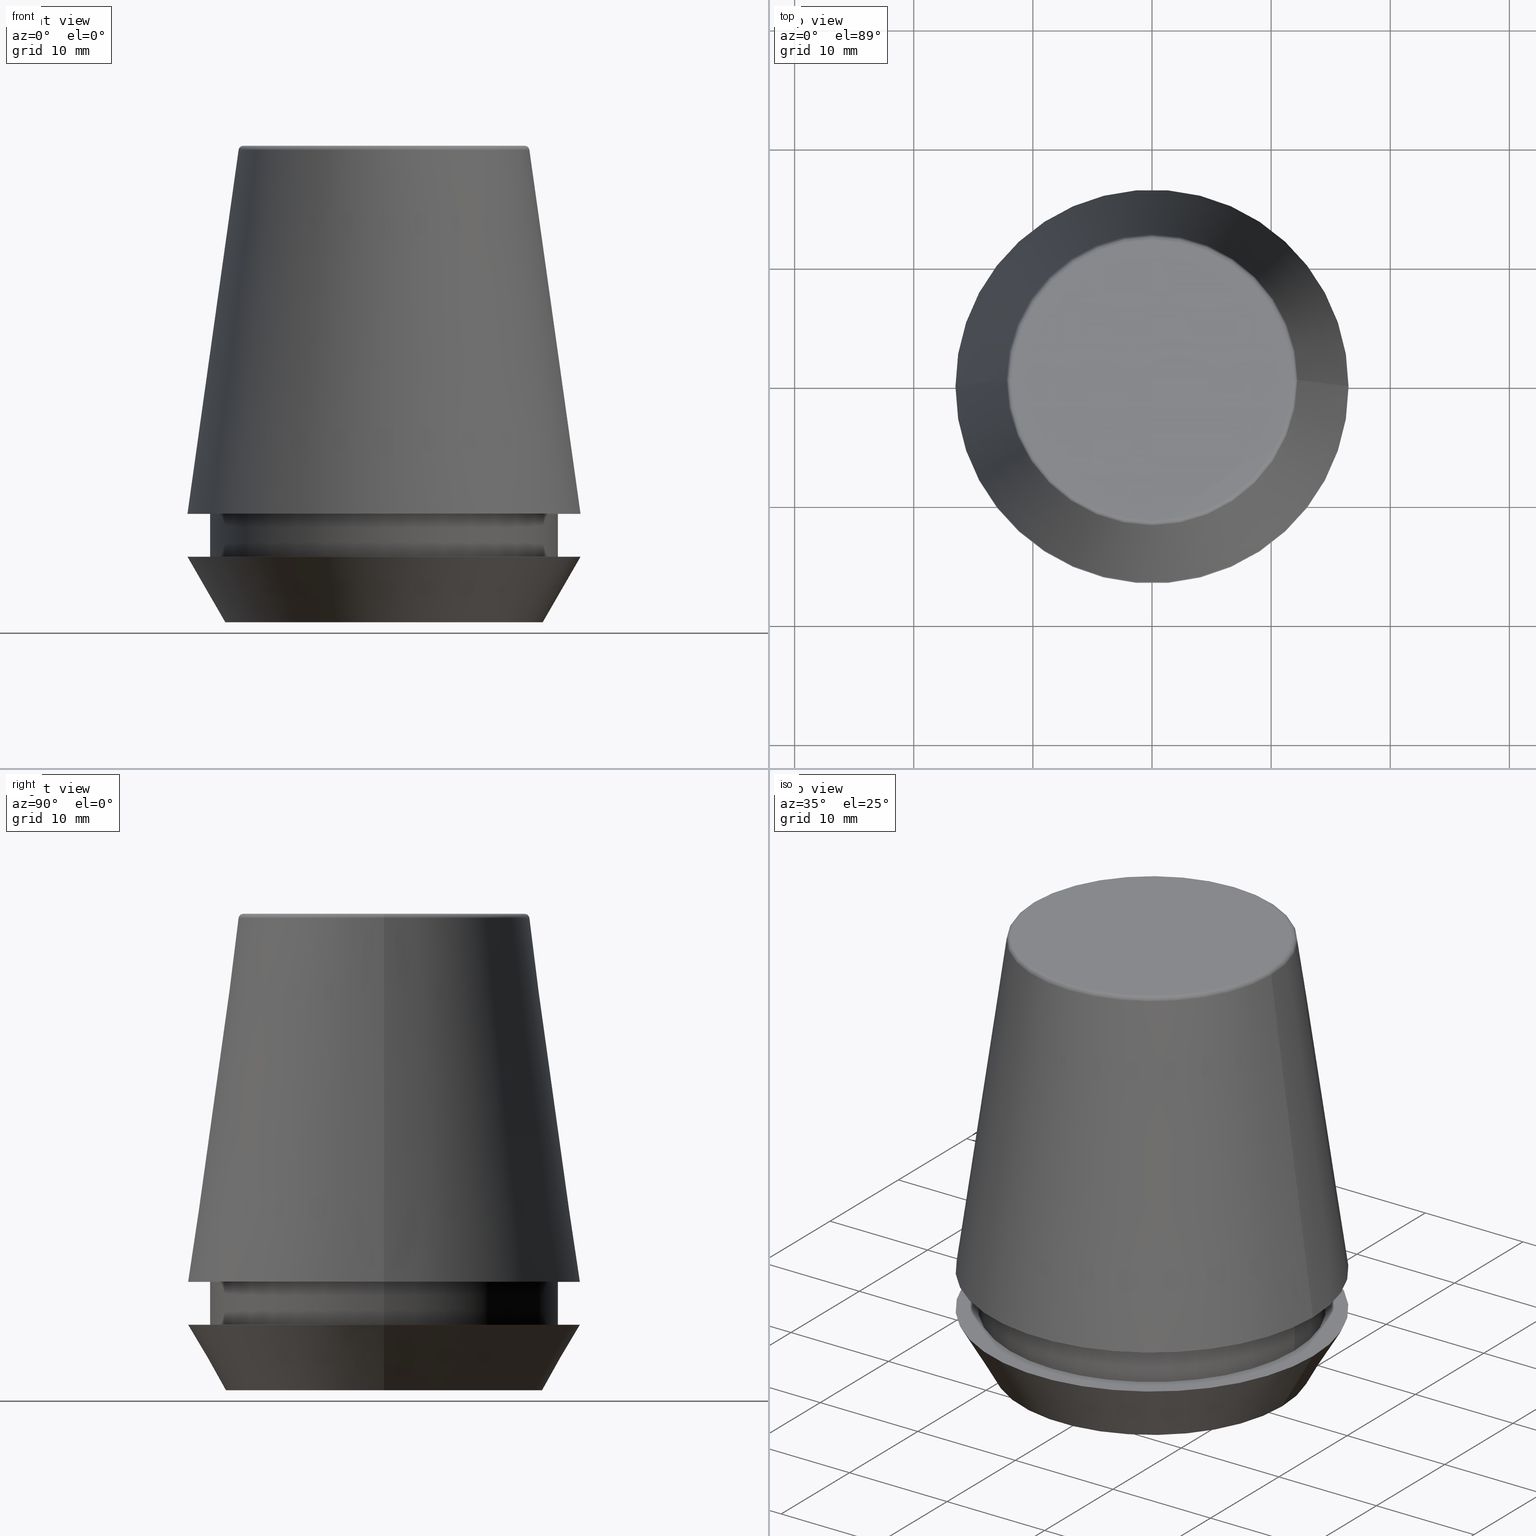
[diagram: canonical four-view strip — front | top / right | iso, engineering-drawing reading convention]
A machine part, canonical four-view strip (front | top / right | iso — engineering-drawing reading convention). The complete STEP part file that produces these views, byte-faithful:
ISO-10303-21;
HEADER;
FILE_DESCRIPTION (( 'STEP AP203' ),
    '1' );
FILE_NAME ('TAP COLLET ER 32G  12.5 X 10.0.STEP',
    '2019-04-09T11:21:53',
    ( '' ),
    ( '' ),
    'SwSTEP 2.0',
    'SolidWorks 2014',
    '' );
FILE_SCHEMA (( 'CONFIG_CONTROL_DESIGN' ));
ENDSEC;

DATA;
#1 = EDGE_CURVE ( 'NONE', #342, #221, #379, .T. ) ;
#2 = CARTESIAN_POINT ( 'NONE',  ( 0.0000000000000000000, 0.0000000000000000000, 5.500000000000005300 ) ) ;
#3 = CARTESIAN_POINT ( 'NONE',  ( 16.50000000000000000, 0.0000000000000000000, 5.500000000000005300 ) ) ;
#4 = DIRECTION ( 'NONE',  ( -1.000000000000000000, 0.0000000000000000000, -0.0000000000000000000 ) ) ;
#5 = ORIENTED_EDGE ( 'NONE', *, *, #53, .F. ) ;
#6 = LOCAL_TIME ( 16, 51, 53.00000000000000000, #304 ) ;
#7 = CIRCLE ( 'NONE', #129, 11.80989888411031400 ) ;
#8 = CARTESIAN_POINT ( 'NONE',  ( -11.80989888411031400, 1.470550059081603400E-015, 40.00000000000000700 ) ) ;
#9 = DIRECTION ( 'NONE',  ( -1.000000000000000000, 0.0000000000000000000, 0.0000000000000000000 ) ) ;
#10 = DIRECTION ( 'NONE',  ( -1.000000000000000000, 0.0000000000000000000, 0.0000000000000000000 ) ) ;
#11 = DIRECTION ( 'NONE',  ( 1.000000000000000000, 0.0000000000000000000, 0.0000000000000000000 ) ) ;
#12 = AXIS2_PLACEMENT_3D ( 'NONE', #315, #149, #184 ) ;
#13 = DIRECTION ( 'NONE',  ( 1.000000000000000000, 0.0000000000000000000, 0.0000000000000000000 ) ) ;
#14 = ORGANIZATION ( 'UNSPECIFIED', 'UNSPECIFIED', '' ) ;
#15 = EDGE_CURVE ( 'NONE', #84, #336, #85, .T. ) ;
#16 = DIRECTION ( 'NONE',  ( 1.000000000000000000, 0.0000000000000000000, 0.0000000000000000000 ) ) ;
#17 = TOROIDAL_SURFACE ( 'NONE', #356, 11.80989888411031400, 0.4000000000000026900 ) ;
#18 = ORIENTED_EDGE ( 'NONE', *, *, #1, .F. ) ;
#19 = VECTOR ( 'NONE', #62, 999.9999999999998900 ) ;
#20 = DIRECTION ( 'NONE',  ( 0.0000000000000000000, 0.0000000000000000000, 1.000000000000000000 ) ) ;
#21 = APPROVAL_ROLE ( '' ) ;
#22 = ADVANCED_FACE ( 'NONE', ( #298 ), #17, .T. ) ;
#23 = EDGE_LOOP ( 'NONE', ( #349, #214, #54, #377 ) ) ;
#24 = EDGE_LOOP ( 'NONE', ( #316, #348, #290, #33 ) ) ;
#25 = CIRCLE ( 'NONE', #322, 12.20600611160694300 ) ;
#26 = EDGE_CURVE ( 'NONE', #52, #100, #112, .T. ) ;
#27 = FACE_OUTER_BOUND ( 'NONE', #386, .T. ) ;
#28 = EDGE_CURVE ( 'NONE', #202, #146, #259, .T. ) ;
#29 = ORIENTED_EDGE ( 'NONE', *, *, #387, .F. ) ;
#30 = DIRECTION ( 'NONE',  ( -0.0000000000000000000, -0.0000000000000000000, 1.000000000000000000 ) ) ;
#31 = PRODUCT_RELATED_PRODUCT_CATEGORY ( 'detail', '', ( #185 ) ) ;
#32 = CARTESIAN_POINT ( 'NONE',  ( -14.60000000000000000, 1.787984326755135800E-015, 5.500000000000005300 ) ) ;
#33 = ORIENTED_EDGE ( 'NONE', *, *, #43, .F. ) ;
#34 = APPROVAL_DATE_TIME ( #293, #67 ) ;
#35 = LINE ( 'NONE', #64, #132 ) ;
#36 = DIRECTION ( 'NONE',  ( 0.0000000000000000000, -0.0000000000000000000, 1.000000000000000000 ) ) ;
#37 = AXIS2_PLACEMENT_3D ( 'NONE', #239, #76, #213 ) ;
#38 = PRODUCT_DEFINITION_SHAPE ( 'NONE', 'NONE',  #299 ) ;
#39 = ORIENTED_EDGE ( 'NONE', *, *, #337, .T. ) ;
#40 = CARTESIAN_POINT ( 'NONE',  ( 0.0000000000000000000, 0.0000000000000000000, 39.65566924038402900 ) ) ;
#41 = LOCAL_TIME ( 16, 51, 53.00000000000000000, #266 ) ;
#42 = CARTESIAN_POINT ( 'NONE',  ( 0.0000000000000000000, 0.0000000000000000000, 39.65566924038402900 ) ) ;
#43 = EDGE_CURVE ( 'NONE', #100, #52, #203, .T. ) ;
#44 = EDGE_CURVE ( 'NONE', #342, #252, #174, .T. ) ;
#45 = VERTEX_POINT ( 'NONE', #288 ) ;
#46 = ORIENTED_EDGE ( 'NONE', *, *, #53, .T. ) ;
#47 = DIRECTION ( 'NONE',  ( 1.000000000000000000, 0.0000000000000000000, 0.0000000000000000000 ) ) ;
#48 = CC_DESIGN_SECURITY_CLASSIFICATION ( #93, ( #186 ) ) ;
#49 = CONICAL_SURFACE ( 'NONE', #245, 13.32457351945710200, 0.5235987755982927100 ) ;
#50 = ADVANCED_FACE ( 'NONE', ( #162, #139 ), #126, .F. ) ;
#51 = DATE_TIME_ROLE ( 'creation_date' ) ;
#52 = VERTEX_POINT ( 'NONE', #350 ) ;
#53 = EDGE_CURVE ( 'NONE', #45, #157, #172, .T. ) ;
#54 = ORIENTED_EDGE ( 'NONE', *, *, #44, .T. ) ;
#55 = CC_DESIGN_APPROVAL ( #67, ( #93 ) ) ;
#56 = EDGE_CURVE ( 'NONE', #157, #45, #25, .T. ) ;
#57 = PERSON ( 'UNSPECIFIED', 'UNSPECIFIED', 'UNSPECIFIED', ('UNSPECIFIED'), ('UNSPECIFIED'), ('UNSPECIFIED') ) ;
#58 = AXIS2_PLACEMENT_3D ( 'NONE', #192, #20, #294 ) ;
#59 = DIRECTION ( 'NONE',  ( 1.000000000000000000, 0.0000000000000000000, 0.0000000000000000000 ) ) ;
#60 = DIRECTION ( 'NONE',  ( 1.000000000000000000, 0.0000000000000000000, 0.0000000000000000000 ) ) ;
#61 = EDGE_CURVE ( 'NONE', #169, #145, #131, .T. ) ;
#62 = DIRECTION ( 'NONE',  ( -0.4999999999999947300, 6.123233995736700700E-017, 0.8660254037844418200 ) ) ;
#63 = ADVANCED_FACE ( 'NONE', ( #27, #119 ), #374, .F. ) ;
#64 = CARTESIAN_POINT ( 'NONE',  ( 14.60000000000000000, 0.0000000000000000000, 101.8074564848000400 ) ) ;
#65 = DIRECTION ( 'NONE',  ( 0.0000000000000000000, 0.0000000000000000000, -1.000000000000000000 ) ) ;
#66 = DIRECTION ( 'NONE',  ( 0.0000000000000000000, 0.0000000000000000000, -1.000000000000000000 ) ) ;
#67 = APPROVAL ( #180, 'UNSPECIFIED' ) ;
#68 = CARTESIAN_POINT ( 'NONE',  ( 13.32457351945710200, 0.0000000000000000000, 0.0000000000000000000 ) ) ;
#69 = EDGE_CURVE ( 'NONE', #146, #52, #35, .T. ) ;
#70 = CARTESIAN_POINT ( 'NONE',  ( 0.0000000000000000000, 0.0000000000000000000, 0.0000000000000000000 ) ) ;
#71 = LINE ( 'NONE', #153, #19 ) ;
#72 = ADVANCED_FACE ( 'NONE', ( #97 ), #49, .T. ) ;
#73 = CC_DESIGN_DATE_AND_TIME_ASSIGNMENT ( #278, #358, ( #93 ) ) ;
#74 = APPROVAL_ROLE ( '' ) ;
#75 = CYLINDRICAL_SURFACE ( 'NONE', #190, 14.60000000000000000 ) ;
#76 = DIRECTION ( 'NONE',  ( -0.0000000000000000000, -0.0000000000000000000, 1.000000000000000000 ) ) ;
#77 = CARTESIAN_POINT ( 'NONE',  ( 11.80989888411031400, 0.0000000000000000000, 39.60000000000000100 ) ) ;
#78 = ORIENTED_EDGE ( 'NONE', *, *, #61, .T. ) ;
#79 = EDGE_CURVE ( 'NONE', #145, #169, #331, .T. ) ;
#80 = EDGE_CURVE ( 'NONE', #95, #252, #267, .T. ) ;
#81 = CC_DESIGN_PERSON_AND_ORGANIZATION_ASSIGNMENT ( #113, #138, ( #93 ) ) ;
#82 = FACE_OUTER_BOUND ( 'NONE', #271, .T. ) ;
#83 = DIRECTION ( 'NONE',  ( 1.000000000000000000, 0.0000000000000000000, 0.0000000000000000000 ) ) ;
#84 = VERTEX_POINT ( 'NONE', #8 ) ;
#85 = CIRCLE ( 'NONE', #170, 11.80989888411031400 ) ;
#86 = EDGE_CURVE ( 'NONE', #202, #100, #240, .T. ) ;
#87 = VECTOR ( 'NONE', #353, 999.9999999999998900 ) ;
#88 = LINE ( 'NONE', #366, #236 ) ;
#89 = DIRECTION ( 'NONE',  ( 0.0000000000000000000, -1.000000000000000000, 0.0000000000000000000 ) ) ;
#90 = CLOSED_SHELL ( 'NONE', ( #22, #205, #231, #241, #142, #103, #72, #50, #134, #63, #209, #364 ) ) ;
#91 = FACE_OUTER_BOUND ( 'NONE', #188, .T. ) ;
#92 = CARTESIAN_POINT ( 'NONE',  ( 0.0000000000000000000, 0.0000000000000000000, 9.099999999999997900 ) ) ;
#93 = SECURITY_CLASSIFICATION ( '', '', #323 ) ;
#94 = DIRECTION ( 'NONE',  ( 1.000000000000000000, 0.0000000000000000000, 0.0000000000000000000 ) ) ;
#95 = VERTEX_POINT ( 'NONE', #222 ) ;
#96 = ORIENTED_EDGE ( 'NONE', *, *, #79, .T. ) ;
#97 = FACE_OUTER_BOUND ( 'NONE', #23, .T. ) ;
#98 = DIRECTION ( 'NONE',  ( 0.0000000000000000000, 0.0000000000000000000, -1.000000000000000000 ) ) ;
#99 = DIRECTION ( 'NONE',  ( -0.0000000000000000000, -0.0000000000000000000, 1.000000000000000000 ) ) ;
#100 = VERTEX_POINT ( 'NONE', #210 ) ;
#101 = DIRECTION ( 'NONE',  ( -0.0000000000000000000, -0.0000000000000000000, 1.000000000000000000 ) ) ;
#102 = VECTOR ( 'NONE', #246, 1000.000000000000000 ) ;
#103 = ADVANCED_FACE ( 'NONE', ( #269 ), #275, .F. ) ;
#104 = DIRECTION ( 'NONE',  ( 0.1391731009600586900, 1.704378926181473100E-017, -0.9902680687415712500 ) ) ;
#105 = PERSON_AND_ORGANIZATION_ROLE ( 'design_supplier' ) ;
#106 = ORIENTED_EDGE ( 'NONE', *, *, #193, .F. ) ;
#107 = ORIENTED_EDGE ( 'NONE', *, *, #181, .F. ) ;
#108 = AXIS2_PLACEMENT_3D ( 'NONE', #381, #171, #47 ) ;
#109 = ORIENTED_EDGE ( 'NONE', *, *, #227, .F. ) ;
#110 = CIRCLE ( 'NONE', #12, 0.4000000000000028000 ) ;
#111 = DATE_AND_TIME ( #122, #270 ) ;
#112 = CIRCLE ( 'NONE', #365, 14.60000000000000000 ) ;
#113 = PERSON_AND_ORGANIZATION ( #57, #14 ) ;
#114 = CARTESIAN_POINT ( 'NONE',  ( 11.80989888411031400, 0.0000000000000000000, 40.00000000000000700 ) ) ;
#115 = AXIS2_PLACEMENT_3D ( 'NONE', #158, #159, #367 ) ;
#116 = DIRECTION ( 'NONE',  ( 1.000000000000000000, 0.0000000000000000000, 0.0000000000000000000 ) ) ;
#117 = ORIENTED_EDGE ( 'NONE', *, *, #56, .T. ) ;
#118 = MANIFOLD_SOLID_BREP ( 'Revolve1', #90 ) ;
#119 = FACE_BOUND ( 'NONE', #263, .T. ) ;
#120 = CARTESIAN_POINT ( 'NONE',  ( -14.60000000000000000, 1.787984326755135800E-015, 101.8074564848000400 ) ) ;
#121 = CC_DESIGN_PERSON_AND_ORGANIZATION_ASSIGNMENT ( #235, #105, ( #186 ) ) ;
#122 = CALENDAR_DATE ( 2019, 9, 4 ) ;
#123 = AXIS2_PLACEMENT_3D ( 'NONE', #77, #89, #280 ) ;
#124 = CIRCLE ( 'NONE', #262, 13.32457351945710200 ) ;
#125 = DIRECTION ( 'NONE',  ( -0.1391731009600586900, 0.0000000000000000000, -0.9902680687415712500 ) ) ;
#126 = PLANE ( 'NONE',  #286 ) ;
#127 = DIRECTION ( 'NONE',  ( -0.0000000000000000000, -0.0000000000000000000, 1.000000000000000000 ) ) ;
#128 = ORIENTED_EDGE ( 'NONE', *, *, #181, .T. ) ;
#129 = AXIS2_PLACEMENT_3D ( 'NONE', #335, #283, #326 ) ;
#130 = CARTESIAN_POINT ( 'NONE',  ( 0.0000000000000000000, 0.0000000000000000000, 9.099999999999997900 ) ) ;
#131 = CIRCLE ( 'NONE', #295, 16.50032537154048700 ) ;
#132 = VECTOR ( 'NONE', #343, 1000.000000000000000 ) ;
#133 = COORDINATED_UNIVERSAL_TIME_OFFSET ( 5, 30, .AHEAD. ) ;
#134 = ADVANCED_FACE ( 'NONE', ( #249 ), #75, .T. ) ;
#135 = MECHANICAL_CONTEXT ( 'NONE', #216, 'mechanical' ) ;
#136 = EDGE_LOOP ( 'NONE', ( #106, #368, #39, #96 ) ) ;
#137 = CC_DESIGN_PERSON_AND_ORGANIZATION_ASSIGNMENT ( #345, #292, ( #186 ) ) ;
#138 = PERSON_AND_ORGANIZATION_ROLE ( 'classification_officer' ) ;
#139 = FACE_OUTER_BOUND ( 'NONE', #196, .T. ) ;
#140 = PERSON_AND_ORGANIZATION ( #57, #14 ) ;
#141 = DATE_AND_TIME ( #339, #273 ) ;
#142 = ADVANCED_FACE ( 'NONE', ( #91 ), #338, .F. ) ;
#143 = DIRECTION ( 'NONE',  ( 1.000000000000000000, 0.0000000000000000000, 0.0000000000000000000 ) ) ;
#144 = AXIS2_PLACEMENT_3D ( 'NONE', #301, #219, #4 ) ;
#145 = VERTEX_POINT ( 'NONE', #325 ) ;
#146 = VERTEX_POINT ( 'NONE', #306 ) ;
#147 = FACE_OUTER_BOUND ( 'NONE', #359, .T. ) ;
#148 = CC_DESIGN_APPROVAL ( #176, ( #186 ) ) ;
#149 = DIRECTION ( 'NONE',  ( 1.224646799147353200E-016, 1.000000000000000000, 0.0000000000000000000 ) ) ;
#150 = SHAPE_DEFINITION_REPRESENTATION ( #38, #351 ) ;
#151 = CARTESIAN_POINT ( 'NONE',  ( 13.32457351945710200, 0.0000000000000000000, 0.0000000000000000000 ) ) ;
#152 = AXIS2_PLACEMENT_3D ( 'NONE', #42, #285, #94 ) ;
#153 = CARTESIAN_POINT ( 'NONE',  ( -13.32457351945710200, 1.631789631060672300E-015, 0.0000000000000000000 ) ) ;
#154 = PERSON_AND_ORGANIZATION ( #57, #14 ) ;
#155 = DIRECTION ( 'NONE',  ( -0.0000000000000000000, -0.0000000000000000000, 1.000000000000000000 ) ) ;
#156 = AXIS2_PLACEMENT_3D ( 'NONE', #376, #65, #9 ) ;
#157 = VERTEX_POINT ( 'NONE', #277 ) ;
#158 = CARTESIAN_POINT ( 'NONE',  ( 0.0000000000000000000, 0.0000000000000000000, 0.0000000000000000000 ) ) ;
#159 = DIRECTION ( 'NONE',  ( 0.0000000000000000000, -0.0000000000000000000, 1.000000000000000000 ) ) ;
#160 = AXIS2_PLACEMENT_3D ( 'NONE', #311, #155, #59 ) ;
#161 = CIRCLE ( 'NONE', #197, 14.60000000000000000 ) ;
#162 = FACE_BOUND ( 'NONE', #191, .T. ) ;
#163 =( NAMED_UNIT ( * ) PLANE_ANGLE_UNIT ( ) SI_UNIT ( $, .RADIAN. ) );
#164 = EDGE_LOOP ( 'NONE', ( #225, #117, #284, #217 ) ) ;
#165 = EDGE_CURVE ( 'NONE', #45, #336, #327, .T. ) ;
#166 = DIRECTION ( 'NONE',  ( 1.000000000000000000, 0.0000000000000000000, 0.0000000000000000000 ) ) ;
#167 =( GEOMETRIC_REPRESENTATION_CONTEXT ( 3 ) GLOBAL_UNCERTAINTY_ASSIGNED_CONTEXT ( ( #268 ) ) GLOBAL_UNIT_ASSIGNED_CONTEXT ( ( #300, #163, #370 ) ) REPRESENTATION_CONTEXT ( 'NONE', 'WORKASPACE' ) );
#168 = CARTESIAN_POINT ( 'NONE',  ( 0.0000000000000000000, 0.0000000000000000000, 0.0000000000000000000 ) ) ;
#169 = VERTEX_POINT ( 'NONE', #340 ) ;
#170 = AXIS2_PLACEMENT_3D ( 'NONE', #382, #260, #317 ) ;
#171 = DIRECTION ( 'NONE',  ( -0.0000000000000000000, -0.0000000000000000000, 1.000000000000000000 ) ) ;
#172 = CIRCLE ( 'NONE', #152, 12.20600611160694300 ) ;
#173 = COORDINATED_UNIVERSAL_TIME_OFFSET ( 5, 30, .AHEAD. ) ;
#174 = LINE ( 'NONE', #68, #87 ) ;
#175 = ORIENTED_EDGE ( 'NONE', *, *, #193, .T. ) ;
#176 = APPROVAL ( #261, 'UNSPECIFIED' ) ;
#177 = CARTESIAN_POINT ( 'NONE',  ( 0.0000000000000000000, 0.0000000000000000000, 5.500000000000005300 ) ) ;
#178 = APPLICATION_CONTEXT ( 'configuration controlled 3d designs of mechanical parts and assemblies' ) ;
#179 = FACE_OUTER_BOUND ( 'NONE', #329, .T. ) ;
#180 = APPROVAL_STATUS ( 'not_yet_approved' ) ;
#181 = EDGE_CURVE ( 'NONE', #252, #95, #281, .T. ) ;
#182 = ORIENTED_EDGE ( 'NONE', *, *, #319, .T. ) ;
#183 = AXIS2_PLACEMENT_3D ( 'NONE', #2, #244, #199 ) ;
#184 = DIRECTION ( 'NONE',  ( -1.000000000000000000, 1.224646799147352500E-016, 0.0000000000000000000 ) ) ;
#185 = PRODUCT ( 'TAP COLLET ER 32G  12.5 X 10.0', 'TAP COLLET ER 32G  12.5 X 10.0', '', ( #135 ) ) ;
#186 = PRODUCT_DEFINITION_FORMATION_WITH_SPECIFIED_SOURCE ( 'ANY', '', #185, .NOT_KNOWN. ) ;
#187 = AXIS2_PLACEMENT_3D ( 'NONE', #328, #98, #10 ) ;
#188 = EDGE_LOOP ( 'NONE', ( #383, #318 ) ) ;
#189 = CARTESIAN_POINT ( 'NONE',  ( 0.0000000000000000000, 0.0000000000000000000, 0.0000000000000000000 ) ) ;
#190 = AXIS2_PLACEMENT_3D ( 'NONE', #274, #99, #116 ) ;
#191 = EDGE_LOOP ( 'NONE', ( #109, #302 ) ) ;
#192 = CARTESIAN_POINT ( 'NONE',  ( 0.0000000000000000000, 0.0000000000000000000, 0.0000000000000000000 ) ) ;
#193 = EDGE_CURVE ( 'NONE', #45, #169, #88, .T. ) ;
#194 = DIRECTION ( 'NONE',  ( -0.0000000000000000000, -0.0000000000000000000, 1.000000000000000000 ) ) ;
#195 = DIRECTION ( 'NONE',  ( 1.000000000000000000, 0.0000000000000000000, 0.0000000000000000000 ) ) ;
#196 = EDGE_LOOP ( 'NONE', ( #128, #289 ) ) ;
#197 = AXIS2_PLACEMENT_3D ( 'NONE', #177, #101, #229 ) ;
#198 = CALENDAR_DATE ( 2019, 9, 4 ) ;
#199 = DIRECTION ( 'NONE',  ( 1.000000000000000000, 0.0000000000000000000, 0.0000000000000000000 ) ) ;
#200 = DIRECTION ( 'NONE',  ( -0.0000000000000000000, -0.0000000000000000000, 1.000000000000000000 ) ) ;
#201 = AXIS2_PLACEMENT_3D ( 'NONE', #220, #282, #347 ) ;
#202 = VERTEX_POINT ( 'NONE', #32 ) ;
#203 = CIRCLE ( 'NONE', #254, 14.60000000000000000 ) ;
#204 = DIRECTION ( 'NONE',  ( -0.0000000000000000000, -0.0000000000000000000, 1.000000000000000000 ) ) ;
#205 = ADVANCED_FACE ( 'NONE', ( #147 ), #238, .T. ) ;
#206 = APPROVAL_STATUS ( 'not_yet_approved' ) ;
#207 = PERSON_AND_ORGANIZATION ( #57, #14 ) ;
#208 = ORIENTED_EDGE ( 'NONE', *, *, #1, .T. ) ;
#209 = ADVANCED_FACE ( 'NONE', ( #305 ), #291, .T. ) ;
#210 = CARTESIAN_POINT ( 'NONE',  ( -14.60000000000000000, 1.787984326755135800E-015, 9.099999999999997900 ) ) ;
#211 = ORIENTED_EDGE ( 'NONE', *, *, #228, .T. ) ;
#212 = LINE ( 'NONE', #332, #258 ) ;
#213 = DIRECTION ( 'NONE',  ( 1.000000000000000000, 0.0000000000000000000, 0.0000000000000000000 ) ) ;
#214 = ORIENTED_EDGE ( 'NONE', *, *, #387, .T. ) ;
#215 = AXIS2_PLACEMENT_3D ( 'NONE', #70, #264, #143 ) ;
#216 = APPLICATION_CONTEXT ( 'configuration controlled 3d designs of mechanical parts and assemblies' ) ;
#217 = ORIENTED_EDGE ( 'NONE', *, *, #15, .F. ) ;
#218 = ORIENTED_EDGE ( 'NONE', *, *, #44, .F. ) ;
#219 = DIRECTION ( 'NONE',  ( 0.0000000000000000000, 0.0000000000000000000, -1.000000000000000000 ) ) ;
#220 = CARTESIAN_POINT ( 'NONE',  ( 0.0000000000000000000, 0.0000000000000000000, 9.099999999999997900 ) ) ;
#221 = VERTEX_POINT ( 'NONE', #226 ) ;
#222 = CARTESIAN_POINT ( 'NONE',  ( -16.50000000000000000, 2.020667218593133100E-015, 5.500000000000005300 ) ) ;
#223 = CC_DESIGN_DATE_AND_TIME_ASSIGNMENT ( #111, #51, ( #299 ) ) ;
#224 = AXIS2_PLACEMENT_3D ( 'NONE', #251, #36, #250 ) ;
#225 = ORIENTED_EDGE ( 'NONE', *, *, #228, .F. ) ;
#226 = CARTESIAN_POINT ( 'NONE',  ( -13.32457351945710200, 1.826228424826902600E-015, 0.0000000000000000000 ) ) ;
#227 = EDGE_CURVE ( 'NONE', #146, #202, #161, .T. ) ;
#228 = EDGE_CURVE ( 'NONE', #157, #84, #110, .T. ) ;
#229 = DIRECTION ( 'NONE',  ( 1.000000000000000000, 0.0000000000000000000, 0.0000000000000000000 ) ) ;
#230 = ORIENTED_EDGE ( 'NONE', *, *, #227, .T. ) ;
#231 = ADVANCED_FACE ( 'NONE', ( #179 ), #320, .T. ) ;
#232 = PERSON_AND_ORGANIZATION_ROLE ( 'creator' ) ;
#233 = APPROVAL_PERSON_ORGANIZATION ( #207, #297, #21 ) ;
#234 = EDGE_CURVE ( 'NONE', #336, #84, #7, .T. ) ;
#235 = PERSON_AND_ORGANIZATION ( #57, #14 ) ;
#236 = VECTOR ( 'NONE', #104, 1000.000000000000000 ) ;
#237 = LOCAL_TIME ( 16, 51, 53.00000000000000000, #355 ) ;
#238 = CONICAL_SURFACE ( 'NONE', #156, 16.50032537154048700, 0.1396263401595395900 ) ;
#239 = CARTESIAN_POINT ( 'NONE',  ( 0.0000000000000000000, 0.0000000000000000000, 0.0000000000000000000 ) ) ;
#240 = LINE ( 'NONE', #120, #102 ) ;
#241 = ADVANCED_FACE ( 'NONE', ( #82 ), #369, .T. ) ;
#242 = CC_DESIGN_PERSON_AND_ORGANIZATION_ASSIGNMENT ( #154, #232, ( #299 ) ) ;
#243 = ORIENTED_EDGE ( 'NONE', *, *, #26, .F. ) ;
#244 = DIRECTION ( 'NONE',  ( -0.0000000000000000000, -0.0000000000000000000, 1.000000000000000000 ) ) ;
#245 = AXIS2_PLACEMENT_3D ( 'NONE', #168, #372, #272 ) ;
#246 = DIRECTION ( 'NONE',  ( -0.0000000000000000000, -0.0000000000000000000, 1.000000000000000000 ) ) ;
#247 = EDGE_LOOP ( 'NONE', ( #46, #211, #303, #341 ) ) ;
#248 = ORIENTED_EDGE ( 'NONE', *, *, #61, .F. ) ;
#249 = FACE_OUTER_BOUND ( 'NONE', #24, .T. ) ;
#250 = DIRECTION ( 'NONE',  ( 1.000000000000000000, 0.0000000000000000000, 0.0000000000000000000 ) ) ;
#251 = CARTESIAN_POINT ( 'NONE',  ( 0.0000000000000000000, 16.50032537154048700, 9.099999999999999600 ) ) ;
#252 = VERTEX_POINT ( 'NONE', #3 ) ;
#253 = CARTESIAN_POINT ( 'NONE',  ( 0.0000000000000000000, 16.50000000000000000, 5.500000000000002700 ) ) ;
#254 = AXIS2_PLACEMENT_3D ( 'NONE', #352, #200, #11 ) ;
#255 = DIRECTION ( 'NONE',  ( 1.000000000000000000, 0.0000000000000000000, 0.0000000000000000000 ) ) ;
#256 = CC_DESIGN_APPROVAL ( #297, ( #299 ) ) ;
#257 = CARTESIAN_POINT ( 'NONE',  ( 0.0000000000000000000, 0.0000000000000000000, 39.60000000000000100 ) ) ;
#258 = VECTOR ( 'NONE', #125, 1000.000000000000000 ) ;
#259 = CIRCLE ( 'NONE', #314, 14.60000000000000000 ) ;
#260 = DIRECTION ( 'NONE',  ( -0.0000000000000000000, -0.0000000000000000000, 1.000000000000000000 ) ) ;
#261 = APPROVAL_STATUS ( 'not_yet_approved' ) ;
#262 = AXIS2_PLACEMENT_3D ( 'NONE', #189, #30, #83 ) ;
#263 = EDGE_LOOP ( 'NONE', ( #312, #360 ) ) ;
#264 = DIRECTION ( 'NONE',  ( -0.0000000000000000000, -0.0000000000000000000, 1.000000000000000000 ) ) ;
#265 = ORIENTED_EDGE ( 'NONE', *, *, #86, .T. ) ;
#266 = COORDINATED_UNIVERSAL_TIME_OFFSET ( 5, 30, .AHEAD. ) ;
#267 = CIRCLE ( 'NONE', #375, 16.50000000000000000 ) ;
#268 = UNCERTAINTY_MEASURE_WITH_UNIT (LENGTH_MEASURE( 1.000000000000000100E-005 ), #300, 'distance_accuracy_value', 'NONE');
#269 = FACE_OUTER_BOUND ( 'NONE', #296, .T. ) ;
#270 = LOCAL_TIME ( 16, 51, 53.00000000000000000, #133 ) ;
#271 = EDGE_LOOP ( 'NONE', ( #208, #182, #107, #218 ) ) ;
#272 = DIRECTION ( 'NONE',  ( 1.000000000000000000, 0.0000000000000000000, 0.0000000000000000000 ) ) ;
#273 = LOCAL_TIME ( 16, 51, 53.00000000000000000, #173 ) ;
#274 = CARTESIAN_POINT ( 'NONE',  ( 0.0000000000000000000, 0.0000000000000000000, 101.8074564848000400 ) ) ;
#275 = PLANE ( 'NONE',  #115 ) ;
#276 = ORIENTED_EDGE ( 'NONE', *, *, #79, .F. ) ;
#277 = CARTESIAN_POINT ( 'NONE',  ( -12.20600611160694300, 0.0000000000000000000, 39.65566924038402900 ) ) ;
#278 = DATE_AND_TIME ( #198, #6 ) ;
#279 = FACE_OUTER_BOUND ( 'NONE', #164, .T. ) ;
#280 = DIRECTION ( 'NONE',  ( 0.0000000000000000000, 0.0000000000000000000, -1.000000000000000000 ) ) ;
#281 = CIRCLE ( 'NONE', #183, 16.50000000000000000 ) ;
#282 = DIRECTION ( 'NONE',  ( -0.0000000000000000000, -0.0000000000000000000, 1.000000000000000000 ) ) ;
#283 = DIRECTION ( 'NONE',  ( -0.0000000000000000000, -0.0000000000000000000, 1.000000000000000000 ) ) ;
#284 = ORIENTED_EDGE ( 'NONE', *, *, #165, .T. ) ;
#285 = DIRECTION ( 'NONE',  ( -0.0000000000000000000, -0.0000000000000000000, 1.000000000000000000 ) ) ;
#286 = AXIS2_PLACEMENT_3D ( 'NONE', #253, #66, #287 ) ;
#287 = DIRECTION ( 'NONE',  ( -1.000000000000000000, 0.0000000000000000000, -0.0000000000000000000 ) ) ;
#288 = CARTESIAN_POINT ( 'NONE',  ( 12.20600611160694300, 1.757755848304969800E-015, 39.65566924038402900 ) ) ;
#289 = ORIENTED_EDGE ( 'NONE', *, *, #80, .T. ) ;
#290 = ORIENTED_EDGE ( 'NONE', *, *, #69, .T. ) ;
#291 = CONICAL_SURFACE ( 'NONE', #187, 16.50032537154048700, 0.1396263401595395900 ) ;
#292 = PERSON_AND_ORGANIZATION_ROLE ( 'creator' ) ;
#293 = DATE_AND_TIME ( #380, #41 ) ;
#294 = DIRECTION ( 'NONE',  ( 1.000000000000000000, 0.0000000000000000000, 0.0000000000000000000 ) ) ;
#295 = AXIS2_PLACEMENT_3D ( 'NONE', #92, #308, #195 ) ;
#296 = EDGE_LOOP ( 'NONE', ( #18, #29 ) ) ;
#297 = APPROVAL ( #206, 'UNSPECIFIED' ) ;
#298 = FACE_OUTER_BOUND ( 'NONE', #247, .T. ) ;
#299 = PRODUCT_DEFINITION ( 'UNKNOWN', '', #186, #309 ) ;
#300 =( LENGTH_UNIT ( ) NAMED_UNIT ( * ) SI_UNIT ( .MILLI., .METRE. ) );
#301 = CARTESIAN_POINT ( 'NONE',  ( 0.0000000000000000000, 11.80989888411031400, 40.00000000000000700 ) ) ;
#302 = ORIENTED_EDGE ( 'NONE', *, *, #28, .F. ) ;
#303 = ORIENTED_EDGE ( 'NONE', *, *, #234, .F. ) ;
#304 = COORDINATED_UNIVERSAL_TIME_OFFSET ( 5, 30, .AHEAD. ) ;
#305 = FACE_OUTER_BOUND ( 'NONE', #136, .T. ) ;
#306 = CARTESIAN_POINT ( 'NONE',  ( 14.60000000000000000, 0.0000000000000000000, 5.500000000000005300 ) ) ;
#307 = PERSON_AND_ORGANIZATION ( #57, #14 ) ;
#308 = DIRECTION ( 'NONE',  ( -0.0000000000000000000, -0.0000000000000000000, 1.000000000000000000 ) ) ;
#309 = DESIGN_CONTEXT ( 'detailed design', #178, 'design' ) ;
#310 = DIRECTION ( 'NONE',  ( -0.0000000000000000000, -0.0000000000000000000, 1.000000000000000000 ) ) ;
#311 = CARTESIAN_POINT ( 'NONE',  ( 0.0000000000000000000, 0.0000000000000000000, 39.60000000000000100 ) ) ;
#312 = ORIENTED_EDGE ( 'NONE', *, *, #26, .T. ) ;
#313 = CARTESIAN_POINT ( 'NONE',  ( 0.0000000000000000000, 0.0000000000000000000, 5.500000000000005300 ) ) ;
#314 = AXIS2_PLACEMENT_3D ( 'NONE', #313, #127, #13 ) ;
#315 = CARTESIAN_POINT ( 'NONE',  ( -11.80989888411031400, 1.446295486667959300E-015, 39.60000000000000100 ) ) ;
#316 = ORIENTED_EDGE ( 'NONE', *, *, #86, .F. ) ;
#317 = DIRECTION ( 'NONE',  ( 1.000000000000000000, 0.0000000000000000000, 0.0000000000000000000 ) ) ;
#318 = ORIENTED_EDGE ( 'NONE', *, *, #15, .T. ) ;
#319 = EDGE_CURVE ( 'NONE', #221, #95, #71, .T. ) ;
#320 = CYLINDRICAL_SURFACE ( 'NONE', #108, 14.60000000000000000 ) ;
#321 = APPLICATION_PROTOCOL_DEFINITION ( 'international standard', 'config_control_design', 1994, #216 ) ;
#322 = AXIS2_PLACEMENT_3D ( 'NONE', #40, #310, #166 ) ;
#323 = SECURITY_CLASSIFICATION_LEVEL ( 'unclassified' ) ;
#324 = DATE_AND_TIME ( #333, #237 ) ;
#325 = CARTESIAN_POINT ( 'NONE',  ( -16.50032537154048700, 0.0000000000000000000, 9.099999999999997900 ) ) ;
#326 = DIRECTION ( 'NONE',  ( 1.000000000000000000, 0.0000000000000000000, 0.0000000000000000000 ) ) ;
#327 = CIRCLE ( 'NONE', #123, 0.4000000000000045200 ) ;
#328 = CARTESIAN_POINT ( 'NONE',  ( 0.0000000000000000000, 0.0000000000000000000, 9.099999999999997900 ) ) ;
#329 = EDGE_LOOP ( 'NONE', ( #230, #265, #243, #354 ) ) ;
#330 = TOROIDAL_SURFACE ( 'NONE', #160, 11.80989888411031400, 0.4000000000000026900 ) ;
#331 = CIRCLE ( 'NONE', #201, 16.50032537154048700 ) ;
#332 = CARTESIAN_POINT ( 'NONE',  ( -16.50032537154048700, 0.0000000000000000000, 9.099999999999997900 ) ) ;
#333 = CALENDAR_DATE ( 2019, 9, 4 ) ;
#334 = PERSON_AND_ORGANIZATION ( #57, #14 ) ;
#335 = CARTESIAN_POINT ( 'NONE',  ( 0.0000000000000000000, 0.0000000000000000000, 40.00000000000000700 ) ) ;
#336 = VERTEX_POINT ( 'NONE', #114 ) ;
#337 = EDGE_CURVE ( 'NONE', #157, #145, #212, .T. ) ;
#338 = PLANE ( 'NONE',  #144 ) ;
#339 = CALENDAR_DATE ( 2019, 9, 4 ) ;
#340 = CARTESIAN_POINT ( 'NONE',  ( 16.50032537154048700, 2.020707065114692300E-015, 9.099999999999997900 ) ) ;
#341 = ORIENTED_EDGE ( 'NONE', *, *, #165, .F. ) ;
#342 = VERTEX_POINT ( 'NONE', #151 ) ;
#343 = DIRECTION ( 'NONE',  ( -0.0000000000000000000, -0.0000000000000000000, 1.000000000000000000 ) ) ;
#344 = CARTESIAN_POINT ( 'NONE',  ( 0.0000000000000000000, 0.0000000000000000000, 5.500000000000005300 ) ) ;
#345 = PERSON_AND_ORGANIZATION ( #57, #14 ) ;
#346 = APPROVAL_DATE_TIME ( #141, #297 ) ;
#347 = DIRECTION ( 'NONE',  ( 1.000000000000000000, 0.0000000000000000000, 0.0000000000000000000 ) ) ;
#348 = ORIENTED_EDGE ( 'NONE', *, *, #28, .T. ) ;
#349 = ORIENTED_EDGE ( 'NONE', *, *, #319, .F. ) ;
#350 = CARTESIAN_POINT ( 'NONE',  ( 14.60000000000000000, 0.0000000000000000000, 9.099999999999997900 ) ) ;
#351 = ADVANCED_BREP_SHAPE_REPRESENTATION ( 'TAP COLLET ER 32G  12.5 X 10.0', ( #118, #58 ), #167 ) ;
#352 = CARTESIAN_POINT ( 'NONE',  ( 0.0000000000000000000, 0.0000000000000000000, 9.099999999999997900 ) ) ;
#353 = DIRECTION ( 'NONE',  ( 0.4999999999999947300, 0.0000000000000000000, 0.8660254037844418200 ) ) ;
#354 = ORIENTED_EDGE ( 'NONE', *, *, #69, .F. ) ;
#355 = COORDINATED_UNIVERSAL_TIME_OFFSET ( 5, 30, .AHEAD. ) ;
#356 = AXIS2_PLACEMENT_3D ( 'NONE', #257, #204, #16 ) ;
#357 = PERSON_AND_ORGANIZATION_ROLE ( 'design_owner' ) ;
#358 = DATE_TIME_ROLE ( 'classification_date' ) ;
#359 = EDGE_LOOP ( 'NONE', ( #5, #175, #78, #373 ) ) ;
#360 = ORIENTED_EDGE ( 'NONE', *, *, #43, .T. ) ;
#361 = APPROVAL_PERSON_ORGANIZATION ( #307, #67, #385 ) ;
#362 = CC_DESIGN_PERSON_AND_ORGANIZATION_ASSIGNMENT ( #140, #357, ( #185 ) ) ;
#363 = APPROVAL_DATE_TIME ( #324, #176 ) ;
#364 = ADVANCED_FACE ( 'NONE', ( #279 ), #330, .T. ) ;
#365 = AXIS2_PLACEMENT_3D ( 'NONE', #130, #378, #255 ) ;
#366 = CARTESIAN_POINT ( 'NONE',  ( 16.50032537154048700, 2.020707065114692300E-015, 9.099999999999997900 ) ) ;
#367 = DIRECTION ( 'NONE',  ( 1.000000000000000000, 0.0000000000000000000, 0.0000000000000000000 ) ) ;
#368 = ORIENTED_EDGE ( 'NONE', *, *, #56, .F. ) ;
#369 = CONICAL_SURFACE ( 'NONE', #37, 13.32457351945710200, 0.5235987755982927100 ) ;
#370 =( NAMED_UNIT ( * ) SI_UNIT ( $, .STERADIAN. ) SOLID_ANGLE_UNIT ( ) );
#371 = APPROVAL_PERSON_ORGANIZATION ( #334, #176, #74 ) ;
#372 = DIRECTION ( 'NONE',  ( -0.0000000000000000000, -0.0000000000000000000, 1.000000000000000000 ) ) ;
#373 = ORIENTED_EDGE ( 'NONE', *, *, #337, .F. ) ;
#374 = PLANE ( 'NONE',  #224 ) ;
#375 = AXIS2_PLACEMENT_3D ( 'NONE', #344, #194, #60 ) ;
#376 = CARTESIAN_POINT ( 'NONE',  ( 0.0000000000000000000, 0.0000000000000000000, 9.099999999999997900 ) ) ;
#377 = ORIENTED_EDGE ( 'NONE', *, *, #80, .F. ) ;
#378 = DIRECTION ( 'NONE',  ( -0.0000000000000000000, -0.0000000000000000000, 1.000000000000000000 ) ) ;
#379 = CIRCLE ( 'NONE', #215, 13.32457351945710200 ) ;
#380 = CALENDAR_DATE ( 2019, 9, 4 ) ;
#381 = CARTESIAN_POINT ( 'NONE',  ( 0.0000000000000000000, 0.0000000000000000000, 101.8074564848000400 ) ) ;
#382 = CARTESIAN_POINT ( 'NONE',  ( 0.0000000000000000000, 0.0000000000000000000, 40.00000000000000700 ) ) ;
#383 = ORIENTED_EDGE ( 'NONE', *, *, #234, .T. ) ;
#384 = APPLICATION_PROTOCOL_DEFINITION ( 'international standard', 'config_control_design', 1994, #178 ) ;
#385 = APPROVAL_ROLE ( '' ) ;
#386 = EDGE_LOOP ( 'NONE', ( #276, #248 ) ) ;
#387 = EDGE_CURVE ( 'NONE', #221, #342, #124, .T. ) ;
ENDSEC;
END-ISO-10303-21;
